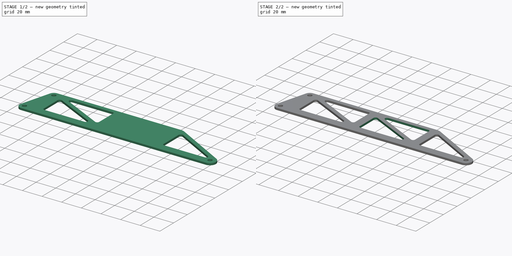
[diagram: build sequence overview — one tinted view per stage of 2, left to right]
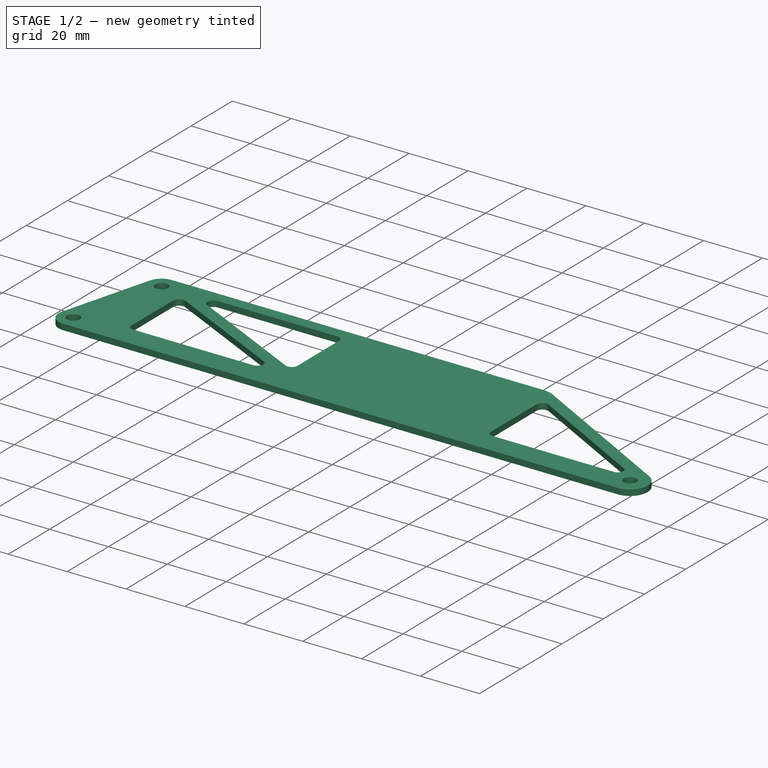
[diagram: stage 1 of 2 — iso view after this stage's code; geometry added in this stage tinted green]
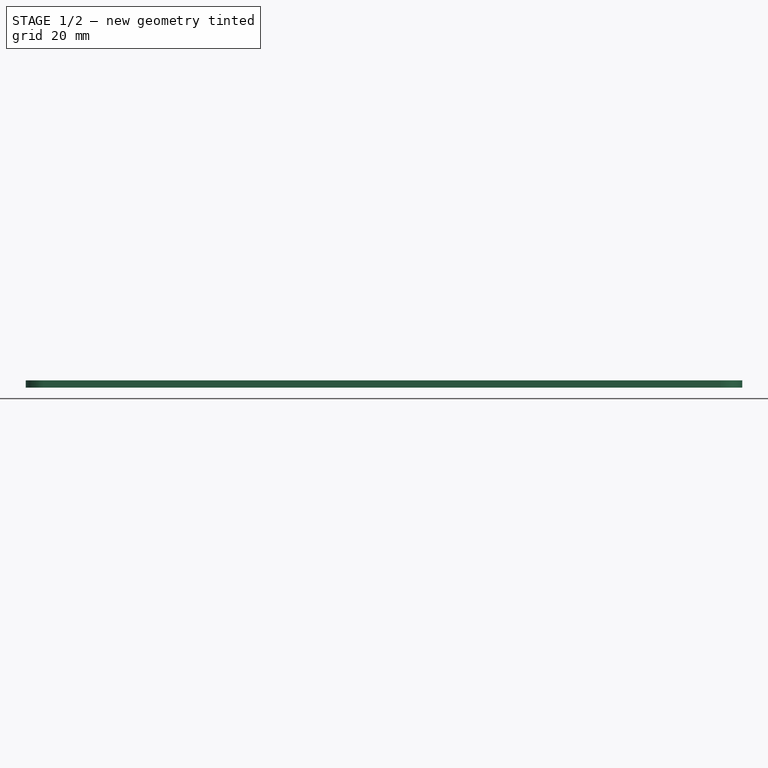
[diagram: stage 1 of 2 — front view after this stage's code; geometry added in this stage tinted green]
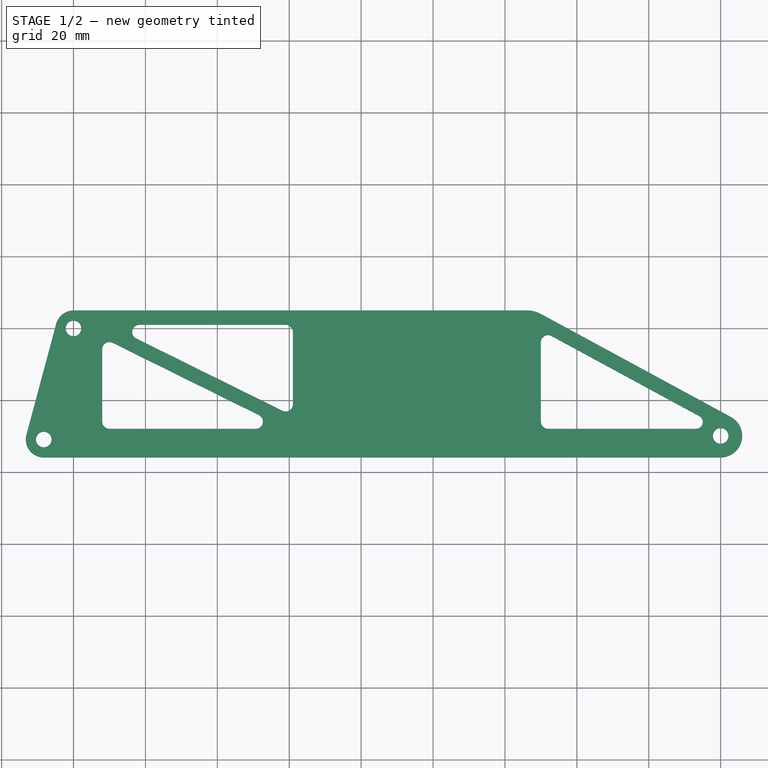
[diagram: stage 1 of 2 — top view after this stage's code; geometry added in this stage tinted green]
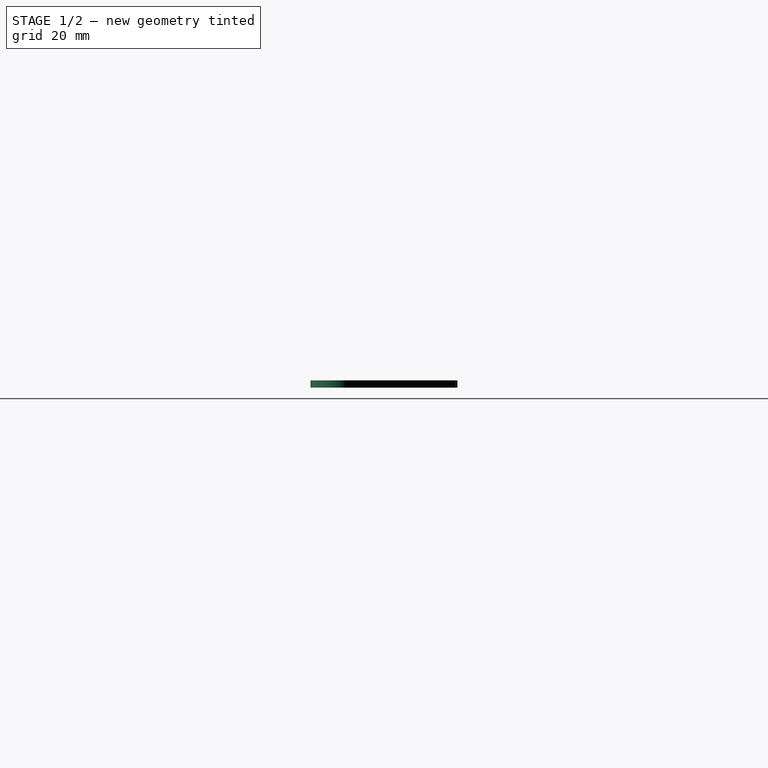
[diagram: stage 1 of 2 — right view after this stage's code; geometry added in this stage tinted green]
FCSTD DOCUMENT  (FreeCAD 0.20R29177 +426 (Git))
Label: BreakawayHeadTruss
License: All rights reserved
LicenseURL: http://en.wikipedia.org/wiki/All_rights_reserved
objects: App::DocumentObjectGroup×3, Sketcher::SketchObject×2, PartDesign::CoordinateSystem×1, App::FeaturePython×1, PartDesign::Pad×1, PartDesign::Pocket×1, PartDesign::LinearPattern×1, PartDesign::Body×1, App::Part×1
note: 9 computed .brp shape members not serialized (recipe doc carries the construction recipe); baked Part::Feature solids carry a one-line shape summary decoded from their .brp
EXTERNAL_REF file=BreakawayHeadBase.FCStd obj=Sketch002

FEATURE [App::DocumentObjectGroup] Parts
FEATURE [PartDesign::CoordinateSystem] LCS_Origin
  AttacherType = Attacher::AttachEngine3D
  MapMode = 2
  Support = -> [X_Axis]
FEATURE [App::FeaturePython] Variables  # WARN: FeaturePython — macro-defined, semantics opaque (R4)
  CompressionWidth = 8
  InternalRadius = 2
  TensionWidth = 4
  TrussAngle = 15
  Type = App::PropertyContainer
FEATURE [App::DocumentObjectGroup] Constraints
FEATURE [App::DocumentObjectGroup] Configurations
FEATURE [Sketcher::SketchObject] Sketch
  FullyConstrained = true
  MapMode = 5
  Support = -> [XY_Plane001]
  expr: Constraints[35] = <<Variables>>.CompressionWidth
  expr: Constraints[38] = <<Variables>>.TensionWidth
  expr: Constraints[50] = <<Variables>>.TensionWidth
  expr: Constraints[51] = <<Variables>>.CompressionWidth
  expr: Constraints[62] = <<BreakawayHeadBase>>#<<Sketch002>>.Constraints.TrussHoleSpacing
  expr: Constraints[65] = 90 - <<Variables>>.TrussAngle
  sketch-geometry (26):
    g0: Circle CenterX=0 CenterY=0 CenterZ=0 NormalX=0 NormalY=0 NormalZ=1 AngleXU=0 Radius=2.15
    g1: ArcOfCircle CenterX=0 CenterY=0 CenterZ=0 NormalX=0 NormalY=0 NormalZ=1 AngleXU=0 Radius=5 StartAngle=1.5708 EndAngle=2.87979
    g2: ArcOfCircle CenterX=180 CenterY=-29.9096 CenterZ=0 NormalX=0 NormalY=0 NormalZ=1 AngleXU=0 Radius=6 StartAngle=4.71239 EndAngle=7.35705
    g3: ArcOfCircle CenterX=-8.28221 CenterY=-30.9096 CenterZ=0 NormalX=0 NormalY=0 NormalZ=1 AngleXU=0 Radius=5 StartAngle=2.87979 EndAngle=4.71239
    g4: LineSegment StartX=-13.1118 StartY=-29.6155 StartZ=0 EndX=-4.82963 EndY=1.2941 EndZ=0
    g5: LineSegment StartX=180 StartY=-35.9096 StartZ=0 EndX=-8.28221 EndY=-35.9096 EndZ=0
    g6: Circle CenterX=180 CenterY=-29.9096 CenterZ=0 NormalX=0 NormalY=0 NormalZ=1 AngleXU=0 Radius=2.15
    g7: ArcOfCircle CenterX=173.149 CenterY=-26.0427 CenterZ=0 NormalX=0 NormalY=0 NormalZ=1 AngleXU=0 Radius=1.86688 StartAngle=4.71239 EndAngle=7.35705
    g8: ArcOfCircle CenterX=180 CenterY=-29.9096 CenterZ=0 NormalX=0 NormalY=0 NormalZ=1 AngleXU=0 Radius=6 StartAngle=1.07386 EndAngle=4.71239
    g9: LineSegment StartX=130 StartY=-25.9096 StartZ=0 EndX=130 EndY=-3.87784 EndZ=0
    g10: ArcOfCircle CenterX=132 CenterY=-25.9096 CenterZ=0 NormalX=0 NormalY=0 NormalZ=1 AngleXU=0 Radius=2 StartAngle=3.14159 EndAngle=4.71239
    g11: ArcOfCircle CenterX=132 CenterY=-3.87784 CenterZ=0 NormalX=0 NormalY=0 NormalZ=1 AngleXU=0 Radius=2 StartAngle=1.07386 EndAngle=3.14159
    g12: LineSegment StartX=132 StartY=-27.9096 StartZ=0 EndX=173.149 EndY=-27.9096 EndZ=0
    g13: LineSegment StartX=132.953 StartY=-2.11974 StartZ=0 EndX=174.039 EndY=-24.4017 EndZ=0
    g14: LineSegment StartX=182.86 StartY=-24.6353 StartZ=0 EndX=130 EndY=4.03238 EndZ=0
    g15: LineSegment StartX=3e-16 StartY=5 StartZ=0 EndX=126.186 EndY=5 EndZ=0
    g16: LineSegment StartX=174.039 StartY=-24.4017 StartZ=0 EndX=175.946 EndY=-20.8855 EndZ=0
    g17: ArcOfCircle CenterX=126.186 CenterY=-3 CenterZ=0 NormalX=0 NormalY=0 NormalZ=1 AngleXU=0 Radius=8 StartAngle=1.07386 EndAngle=1.5708
    g18: GeomPoint X=128.216 Y=5 Z=0
    g19: LineSegment StartX=8 StartY=1 StartZ=0 EndX=130 EndY=1 EndZ=0
    g20: LineSegment StartX=130 StartY=1 StartZ=0 EndX=130 EndY=-27.9096 EndZ=0
    g21: LineSegment StartX=130 StartY=-27.9096 StartZ=0 EndX=8 EndY=-27.9096 EndZ=0
    g22: LineSegment StartX=8 StartY=-27.9096 StartZ=0 EndX=8 EndY=1 EndZ=0
    g23: GeomPoint X=8 Y=-13.4548 Z=0
    g24: LineSegment StartX=0 StartY=0 StartZ=0 EndX=-8.28221 EndY=-30.9096 EndZ=0
    g25: Circle CenterX=-8.28221 CenterY=-30.9096 CenterZ=0 NormalX=0 NormalY=0 NormalZ=1 AngleXU=0 Radius=2.15
  constraints (68):
    c: Diameter(g0) = 4.3
    c: Tangent(g3,g4) = 1.5708
    c: Tangent(g4,g1) = 1.5708
    c: Horizontal(g5)
    c: DistanceX(g-1,g2) = 180  'TrussLength'
    c: Tangent(g5,g3) = 1.5708
    c: Coincident(g6,g2)
    c: Radius(g1) = 5
    c: Coincident(g1,g0)
    c: Radius(g2) = 6
    c: Coincident(g8,g2)
    c: Coincident(g8,g2)
    c: Vertical(g9)
    c: Tangent(g9,g10) = 1.5708
    c: Tangent(g9,g11) = 1.5708
    c: Tangent(g12,g10) = -1.5708
    c: Tangent(g7,g12) = -1.5708
    c: Tangent(g7,g8)
    c: Tangent(g5,g2) = 1.5708
    c: Coincident(g8,g2)
    c: Horizontal(g12)
    c: Tangent(g13,g7) = 1.5708
    c: Tangent(g13,g11) = 1.5708
    c: Tangent(g14,g2) = -1.5708
    c: Horizontal(g15)
    c: Parallel(g14,g13)
    c: Coincident(g16,g7)
    c: PointOnObject(g16,g14)
    c: Perpendicular(g13,g16)
    c: Tangent(g15,g1) = 1.5708
    c: PointOnObject(g18,g15)
    c: PointOnObject(g18,g14)
    c: Tangent(g15,g17) = 1.5708
    c: Tangent(g14,g17) = -1.5708
    c: Radius(g17) = 8
    c: DistanceY(g3,g10) = 8
    c: Equal(g11,g10)
    c: Radius(g10) = 2
    c: Distance(g16) = 4
    c: DistanceX(g9,g2) = 50
    c: PointOnObject(g14,g9)
    c: Coincident(g19,g20)
    c: Coincident(g20,g21)
    c: Coincident(g21,g22)
    c: Coincident(g22,g19)
    c: Horizontal(g19)
    c: Horizontal(g21)
    c: Vertical(g20)
    c: Vertical(g22)
    c: PointOnObject(g20,g12)
    c: DistanceY(g19,g15) = 4
    c: DistanceX(g0,g19) = 8
    c: DistanceX(g19,g19) = 122  'TrussWidth'
    c: DistanceY(g22,g22) = 28.9096  'TrussHeight'
    c: DistanceX(g-1,g21) = 8  'TrussOffsetX'
    c: Symmetric(g19,g21,g23)
    c: DistanceY(g-1,g23) = -13.4548  'TrussOffsetY'
    c: PointOnObject(g20,g9)
    c: DistanceY(g2,g-1) = 29.9096  'PulleyHoleOffset'
    c: Equal(g3,g1)
    c: Coincident(g24,g0)
    c: Coincident(g24,g3)
    c: Distance(g24) = 32
    c: Coincident(g25,g3)
    c: Equal(g25,g0)
    c: Angle(g-1,g24) = 1.309
    c: Coincident(g0,g-1)
    c: Equal(g6,g25)
FEATURE [PartDesign::Pad] Pad
  Direction = (0,0,1)
  Length = 2
  Length2 = 10
  Profile = -> Sketch
  ReferenceAxis = -> Sketch [N_Axis]
  Type = 0
FEATURE [Sketcher::SketchObject] Sketch_1
  FullyConstrained = true
  MapMode = 2
  Support = -> [XY_Plane001]
  expr: Constraints[10] = Sketch.Constraints.TrussOffsetX
  expr: Constraints[11] = Sketch.Constraints.TrussWidth
  expr: Constraints[12] = Sketch.Constraints.TrussHeight
  expr: Constraints[26] = <<Variables>>.TensionWidth
  expr: Constraints[56] = <<Variables>>.InternalRadius
  expr: Constraints[67] = <<Variables>>.CompressionWidth
  expr: Constraints[9] = Sketch.Constraints.TrussOffsetY
  sketch-geometry (31):
    g0: LineSegment StartX=8 StartY=-27.9096 StartZ=0 EndX=8 EndY=1 EndZ=0
    g1: LineSegment StartX=8 StartY=1 StartZ=0 EndX=130 EndY=1 EndZ=0
    g2: LineSegment StartX=130 StartY=1 StartZ=0 EndX=130 EndY=-27.9096 EndZ=0
    g3: LineSegment StartX=130 StartY=-27.9096 StartZ=0 EndX=8 EndY=-27.9096 EndZ=0
    g4: GeomPoint X=69 Y=-13.4548 Z=0
    g5: LineSegment StartX=10.8863 StartY=-4.01261 StartZ=0 EndX=51.5548 EndY=-24.1167 EndZ=0
    g6: LineSegment StartX=50.6685 StartY=-27.9096 StartZ=0 EndX=10 EndY=-27.9096 EndZ=0
    g7: LineSegment StartX=8 StartY=-25.9096 StartZ=0 EndX=8 EndY=-5.8055 EndZ=0
    g8: LineSegment StartX=17.4452 StartY=-2.79289 StartZ=0 EndX=58.1137 EndY=-22.897 EndZ=0
    g9: LineSegment StartX=61 StartY=-21.1041 StartZ=0 EndX=61 EndY=-1 EndZ=0
    g10: LineSegment StartX=59 StartY=1 StartZ=0 EndX=18.3315 EndY=1 EndZ=0
    g11: LineSegment StartX=59.2274 StartY=-27.9096 StartZ=0 EndX=61 EndY=-24.3238 EndZ=0
    g12: LineSegment StartX=8 StartY=-2.58579 StartZ=0 EndX=9.7726 EndY=1 EndZ=0
    g13: ArcOfCircle CenterX=59 CenterY=-21.1041 CenterZ=0 NormalX=0 NormalY=0 NormalZ=1 AngleXU=0 Radius=2 StartAngle=4.25328 EndAngle=6.28319
    g14: GeomPoint X=61 Y=-24.3238 Z=0
    g15: ArcOfCircle CenterX=59 CenterY=-1 CenterZ=0 NormalX=0 NormalY=0 NormalZ=1 AngleXU=0 Radius=2 StartAngle=0 EndAngle=1.5708
    g16: GeomPoint X=61 Y=1 Z=0
    g17: ArcOfCircle CenterX=18.3315 CenterY=-1 CenterZ=0 NormalX=0 NormalY=0 NormalZ=1 AngleXU=0 Radius=2 StartAngle=1.5708 EndAngle=4.25328
    g18: GeomPoint X=9.7726 Y=1 Z=0
    g19: ArcOfCircle CenterX=10 CenterY=-5.8055 CenterZ=0 NormalX=0 NormalY=0 NormalZ=1 AngleXU=0 Radius=2 StartAngle=1.11169 EndAngle=3.14159
    g20: GeomPoint X=8 Y=-2.58579 Z=0
    g21: ArcOfCircle CenterX=10 CenterY=-25.9096 CenterZ=0 NormalX=0 NormalY=0 NormalZ=1 AngleXU=0 Radius=2 StartAngle=3.14159 EndAngle=4.71239
    g22: GeomPoint X=8 Y=-27.9096 Z=0
    g23: ArcOfCircle CenterX=50.6685 CenterY=-25.9096 CenterZ=0 NormalX=0 NormalY=0 NormalZ=1 AngleXU=0 Radius=2 StartAngle=4.71239 EndAngle=7.39487
    g24: GeomPoint X=59.2274 Y=-27.9096 Z=0
    g25: LineSegment StartX=8 StartY=-27.9096 StartZ=0 EndX=8 EndY=-37.9096 EndZ=0
    g26: LineSegment StartX=8 StartY=-37.9096 StartZ=0 EndX=69 EndY=-37.9096 EndZ=0
    g27: LineSegment StartX=61 StartY=-21.1041 StartZ=0 EndX=69 EndY=-21.1041 EndZ=0
    g28: LineSegment StartX=69 StartY=-21.1041 StartZ=0 EndX=69 EndY=-37.9096 EndZ=0
    g29: LineSegment StartX=69 StartY=-37.9096 StartZ=0 EndX=130 EndY=-37.9096 EndZ=0
    g30: LineSegment StartX=130 StartY=-37.9096 StartZ=0 EndX=130 EndY=-27.9096 EndZ=0
  constraints (74):
    c: Coincident(g0,g1)
    c: Coincident(g1,g2)
    c: Coincident(g2,g3)
    c: Coincident(g3,g0)
    c: Horizontal(g1)
    c: Horizontal(g3)
    c: Vertical(g0)
    c: Vertical(g2)
    c: Symmetric(g1,g0,g4)
    c: DistanceY(g-1,g4) = -13.4548
    c: DistanceX(g-1,g0) = 8
    c: DistanceX(g1,g1) = 122
    c: DistanceY(g0,g0) = 28.9096
    c: PointOnObject(g20,g0)
    c: PointOnObject(g24,g3)
    c: Coincident(g22,g0)
    c: PointOnObject(g18,g1)
    c: PointOnObject(g16,g1)
    c: Vertical(g9)
    c: Parallel(g8,g5)
    c: Coincident(g11,g24)
    c: Coincident(g11,g14)
    c: Coincident(g12,g20)
    c: Coincident(g12,g18)
    c: Parallel(g11,g12)
    c: Perpendicular(g5,g11)
    c: Distance(g11) = 4
    c: PointOnObject(g14,g8)
    c: PointOnObject(g14,g9)
    c: Tangent(g8,g13) = -1.5708
    c: Tangent(g9,g13) = -1.5708
    c: PointOnObject(g16,g9)
    c: PointOnObject(g16,g10)
    c: Tangent(g9,g15) = -1.5708
    c: Tangent(g10,g15) = -1.5708
    c: PointOnObject(g18,g10)
    c: PointOnObject(g18,g8)
    c: Tangent(g10,g17) = -1.5708
    c: Tangent(g8,g17) = -1.5708
    c: PointOnObject(g20,g5)
    c: PointOnObject(g20,g7)
    c: Tangent(g5,g19) = 1.5708
    c: Tangent(g7,g19) = 1.5708
    c: PointOnObject(g22,g7)
    c: PointOnObject(g22,g6)
    c: Tangent(g7,g21) = 1.5708
    c: Tangent(g6,g21) = 1.5708
    c: PointOnObject(g24,g6)
    c: PointOnObject(g24,g5)
    c: Tangent(g6,g23) = 1.5708
    c: Tangent(g5,g23) = 1.5708
    c: Equal(g23,g21)
    c: Equal(g21,g19)
    c: Equal(g19,g17)
    c: Equal(g17,g15)
    c: Equal(g15,g13)
    c: Radius(g15) = 2
    c: Coincident(g25,g0)
    c: Vertical(g25)
    c: Coincident(g26,g25)
    c: Horizontal(g26)
    c: DistanceY(g25,g25) = 10
    c: Coincident(g27,g9)
    c: Horizontal(g27)
    c: Coincident(g28,g27)
    c: Coincident(g28,g26)
    c: Vertical(g28)
    c: DistanceX(g27,g27) = 8
    c: Horizontal(g29)
    c: Coincident(g30,g29)
    c: Coincident(g30,g2)
    c: Vertical(g30)
    c: Coincident(g29,g26)
    c: Equal(g26,g29)
FEATURE [PartDesign::Pocket] Pocket  label="TrussCutout"
  BaseFeature = -> Pad
  Direction = (0,0,-1)
  Length = 5
  Length2 = 5
  Midplane = true
  Profile = -> Sketch_1
  ReferenceAxis = -> Sketch_1 [N_Axis]
  Type = 1
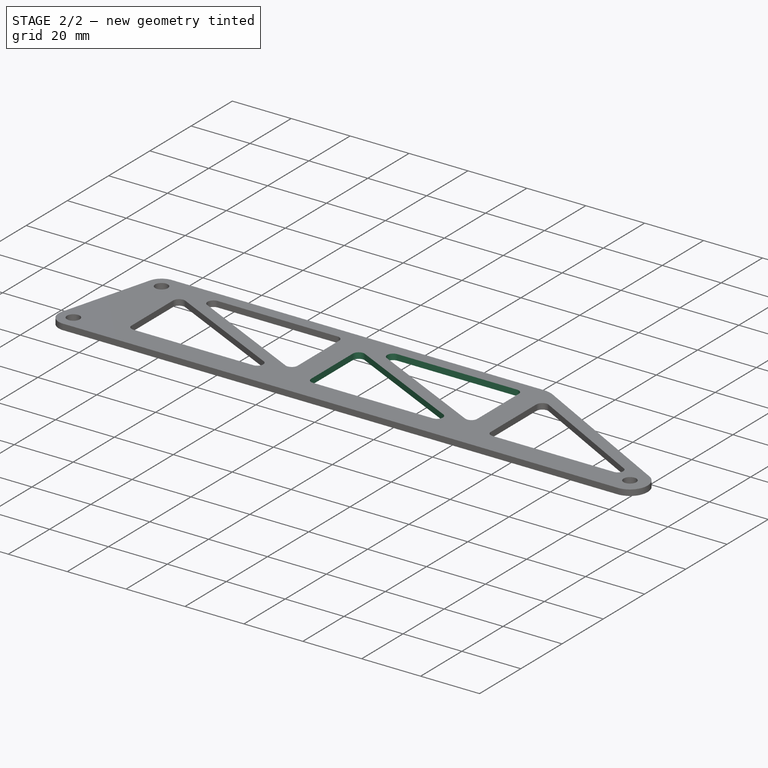
[diagram: stage 2 of 2 — iso view after this stage's code; geometry added in this stage tinted green]
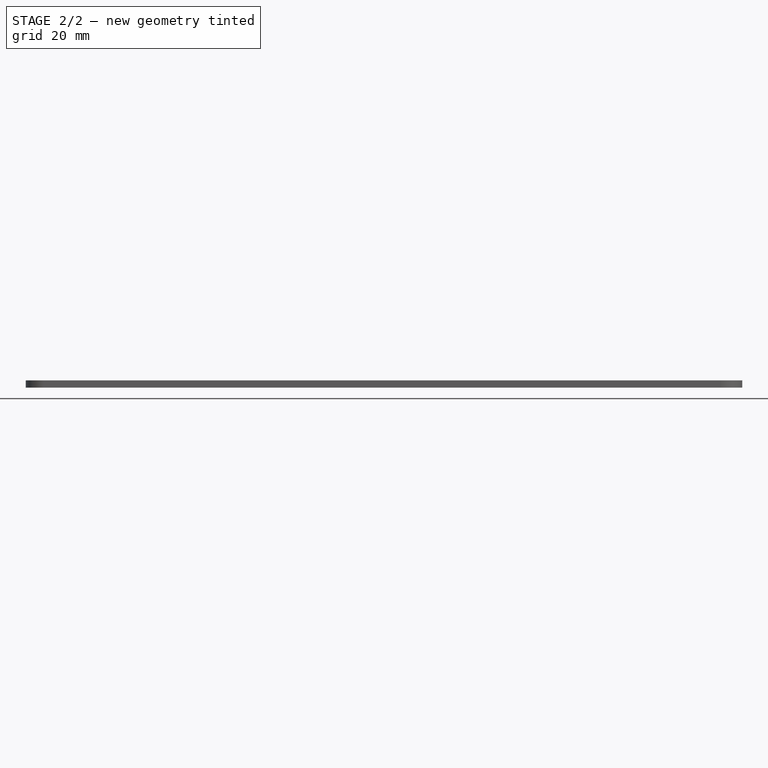
[diagram: stage 2 of 2 — front view after this stage's code; geometry added in this stage tinted green]
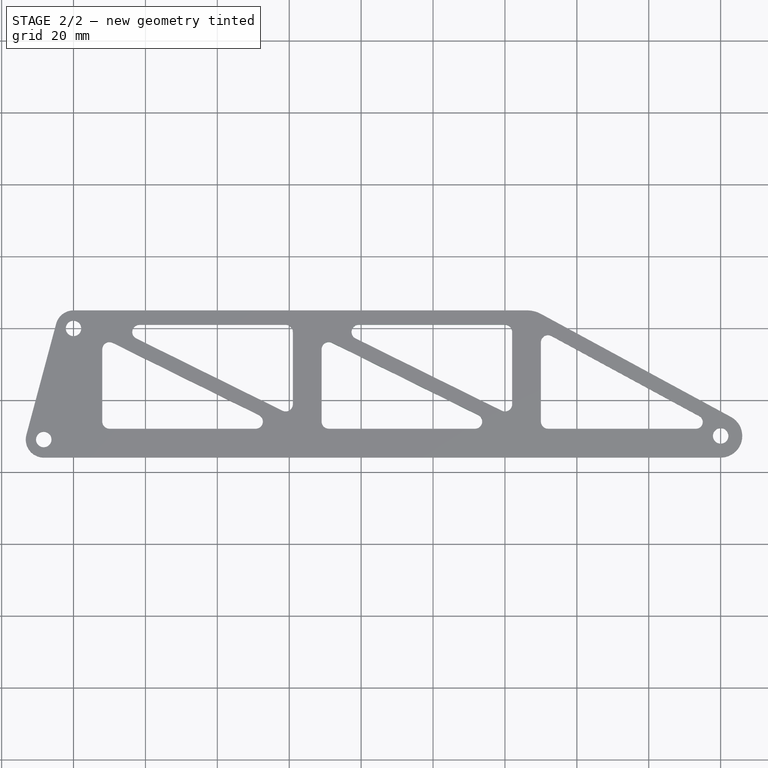
[diagram: stage 2 of 2 — top view after this stage's code; geometry added in this stage tinted green]
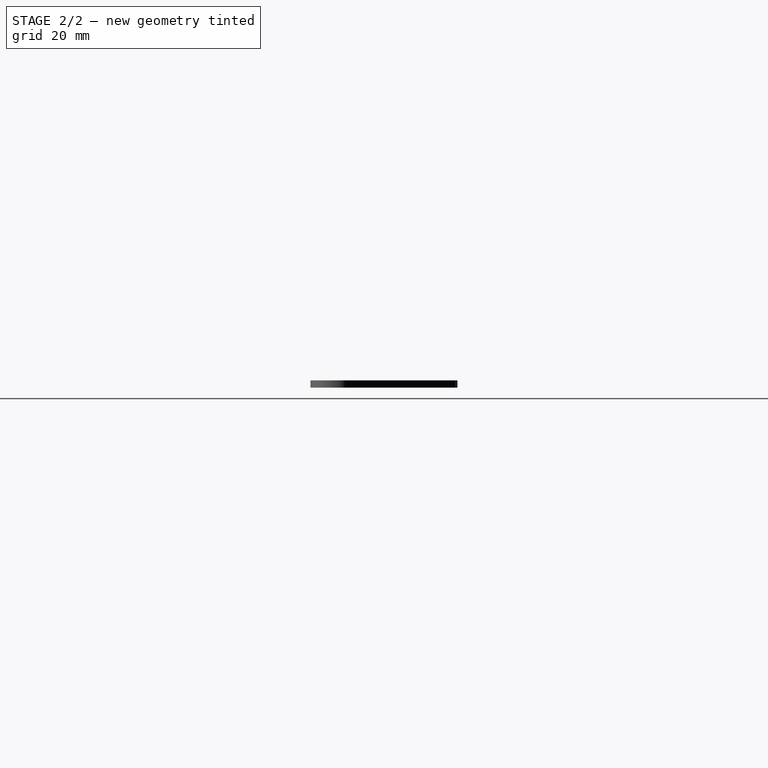
[diagram: stage 2 of 2 — right view after this stage's code; geometry added in this stage tinted green]
FEATURE [PartDesign::LinearPattern] LinearPattern  label="CutoutPattern"
  BaseFeature = -> Pocket
  Direction = -> Sketch_1 [H_Axis]
  Length = 61
  Occurrences = 2
  Originals = -> [Pocket]
  expr: Length = Sketch.Constraints.TrussWidth * 0.5
FEATURE [PartDesign::Body] Body
  Group = -> [Sketch,Pad,Sketch_1,Pocket,LinearPattern]
  Origin = -> Origin001
  Tip = -> LinearPattern
FEATURE [App::Part] Assembly
  AssemblyType = Part::Link
  Group = -> [LCS_Origin,Variables,Constraints,Configurations,Body]
  Origin = -> Origin
  Type = Assembly
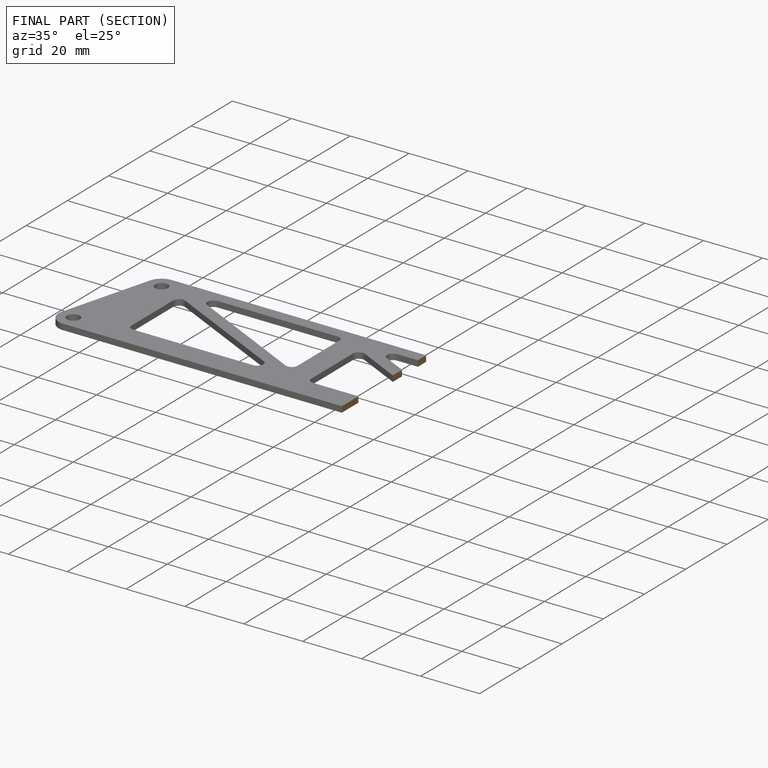
[diagram: finished part — half-section view (interior)]
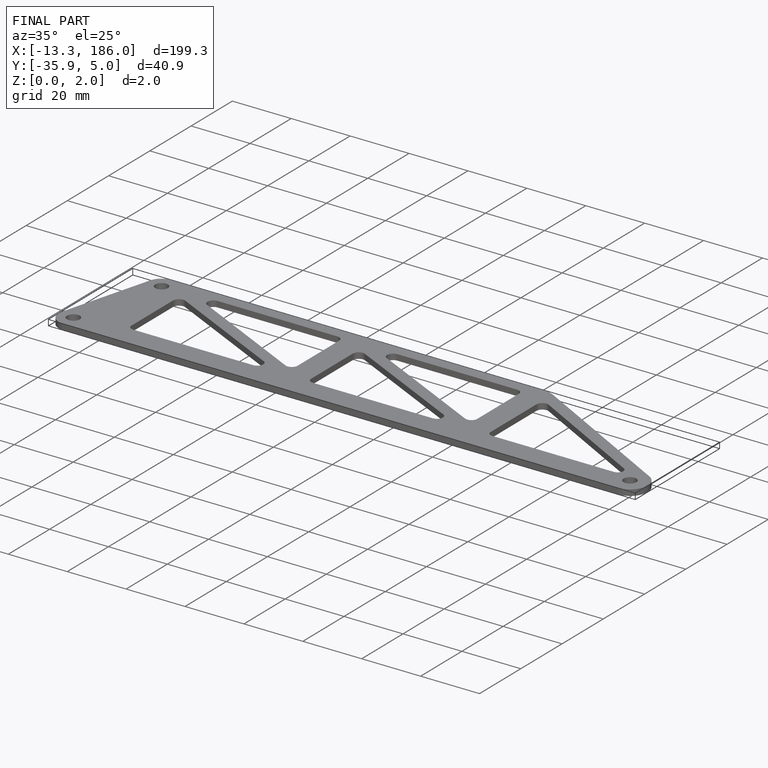
[diagram: finished part — iso view with bounding-box wireframe]
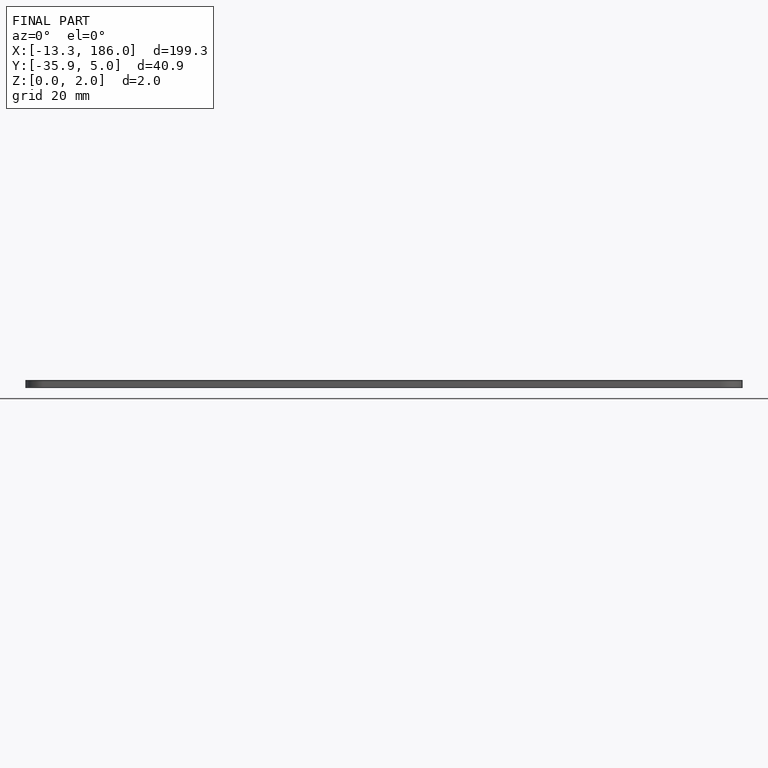
[diagram: finished part — front view with bounding-box wireframe]
